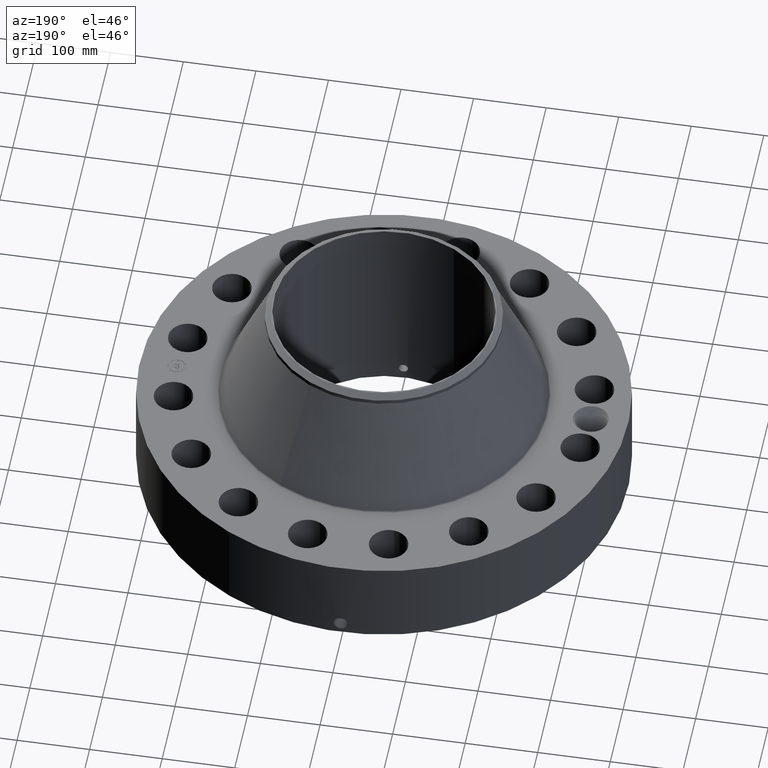
[diagram: clean part render]
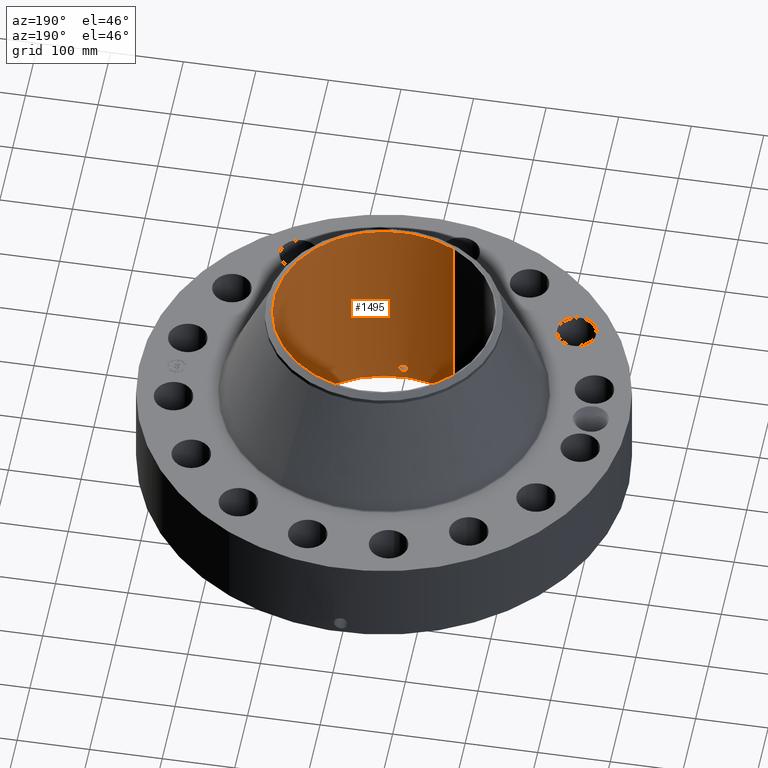
[diagram: same view with one face highlighted and labeled with its STEP entity id]
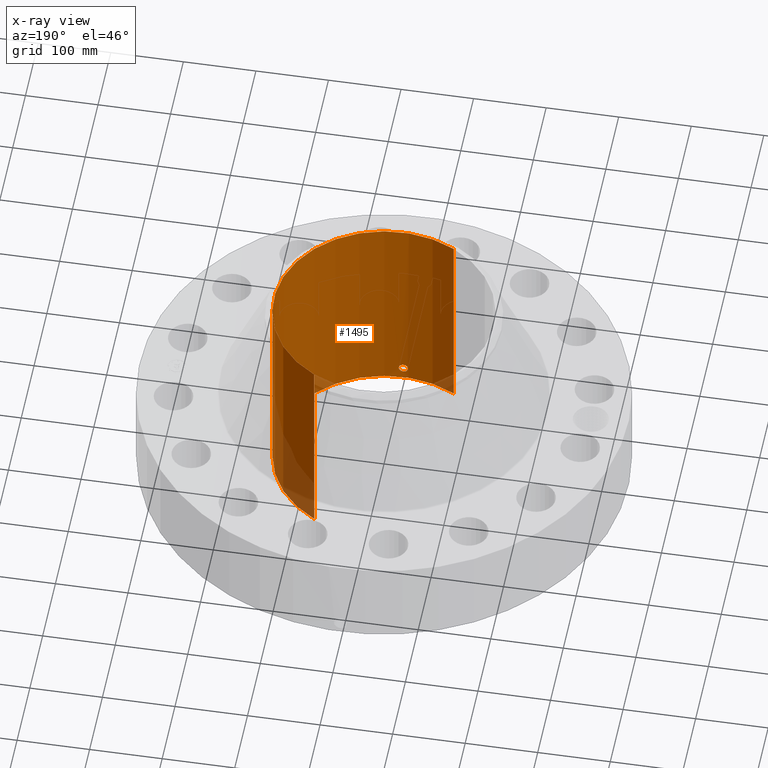
[diagram: x-ray of the same camera — body ghosted, the highlighted face saturated]
A machine part, auxiliary view. The second image highlights one B-rep face of the part: STEP entity #1495.
The next image is the same camera in x-ray: the body ghosted, the highlighted face saturated — about 8% of this face is hidden behind the body in this view.
In plain terms, the highlighted cylindrical surface (partial cylindrical patch) has radius 151.613 mm, axis along (0, 0, -1).
Its self-contained STEP definition (entity closure, byte-faithful):
#262=AXIS2_PLACEMENT_3D('Circle Axis2P3D',#260,#261,$) ;
#1426=AXIS2_PLACEMENT_3D('Cylinder Axis2P3D',#1423,#1424,#1425) ;
#1430=AXIS2_PLACEMENT_3D('Circle Axis2P3D',#1428,#1429,$) ;
#260=CARTESIAN_POINT('Axis2P3D Location',(0.,0.,0.250000000001)) ;
#264=CARTESIAN_POINT('Vertex',(2.86169103994,5.23829031194,0.250000000001)) ;
#266=CARTESIAN_POINT('Vertex',(-2.86169103994,-5.23829031194,0.250000000001)) ;
#1423=CARTESIAN_POINT('Axis2P3D Location',(0.,0.,5.81000000002)) ;
#1428=CARTESIAN_POINT('Axis2P3D Location',(0.,0.,11.37)) ;
#1432=CARTESIAN_POINT('Vertex',(2.86169103994,5.23829031194,11.37)) ;
#1434=CARTESIAN_POINT('Vertex',(-2.86169103994,-5.23829031194,11.37)) ;
#1437=CARTESIAN_POINT('Line Origine',(2.86169103994,5.23829031194,5.81000000002)) ;
#1442=CARTESIAN_POINT('Line Origine',(-2.86169103994,-5.23829031194,5.81000000002)) ;
#1454=CARTESIAN_POINT('Control Point',(0.219395640473,-5.96496660118,0.820143615352)) ;
#1455=CARTESIAN_POINT('Control Point',(0.206921632116,-5.96542540393,0.797310096213)) ;
#1456=CARTESIAN_POINT('Control Point',(0.191477792798,-5.96596078778,0.776100563377)) ;
#1457=CARTESIAN_POINT('Control Point',(0.173344008309,-5.96653140082,0.757028402361)) ;
#1458=CARTESIAN_POINT('Control Point',(0.112128400755,-5.96818197278,0.707545153448)) ;
#1459=CARTESIAN_POINT('Control Point',(0.0349677224378,-5.96925434584,0.684023123762)) ;
#1460=CARTESIAN_POINT('Control Point',(-0.0195753009668,-5.96933432106,0.682387715832)) ;
#1461=CARTESIAN_POINT('Control Point',(-0.124165117875,-5.96815350968,0.707537772894)) ;
#1462=CARTESIAN_POINT('Control Point',(-0.203212659402,-5.96571018499,0.780466647274)) ;
#1463=CARTESIAN_POINT('Control Point',(-0.232184785503,-5.96450768293,0.826691511993)) ;
#1464=CARTESIAN_POINT('Control Point',(-0.255836274106,-5.96351830833,0.904843823839)) ;
#1465=CARTESIAN_POINT('Control Point',(-0.248290285215,-5.96383370337,0.984222432991)) ;
#1466=CARTESIAN_POINT('Control Point',(-0.242056330238,-5.96409807315,1.01079694588)) ;
#1467=CARTESIAN_POINT('Control Point',(-0.232320088085,-5.96449123097,1.03619834199)) ;
#1468=CARTESIAN_POINT('Control Point',(-0.219395640473,-5.96496660118,1.05985638466)) ;
#1469=CARTESIAN_POINT('Vertex',(0.219395640473,-5.96496660118,0.820143615352)) ;
#1471=CARTESIAN_POINT('Vertex',(-0.219395640473,-5.96496660118,1.05985638466)) ;
#1475=CARTESIAN_POINT('Control Point',(-0.219395640473,-5.96496660118,1.05985638466)) ;
#1476=CARTESIAN_POINT('Control Point',(-0.206921632111,-5.96542540393,1.0826899038)) ;
#1477=CARTESIAN_POINT('Control Point',(-0.191477792786,-5.96596078778,1.10389943665)) ;
#1478=CARTESIAN_POINT('Control Point',(-0.173344008325,-5.96653140082,1.12297159763)) ;
#1479=CARTESIAN_POINT('Control Point',(-0.112128400769,-5.96818197278,1.17245484655)) ;
#1480=CARTESIAN_POINT('Control Point',(-0.0349677224468,-5.96925434584,1.19597687624)) ;
#1481=CARTESIAN_POINT('Control Point',(0.0195753009728,-5.96933432106,1.19761228417)) ;
#1482=CARTESIAN_POINT('Control Point',(0.124165117842,-5.96815350968,1.17246222712)) ;
#1483=CARTESIAN_POINT('Control Point',(0.203212659349,-5.96571018499,1.09953335278)) ;
#1484=CARTESIAN_POINT('Control Point',(0.232184785523,-5.96450768292,1.05330848795)) ;
#1485=CARTESIAN_POINT('Control Point',(0.255836274114,-5.96351830833,0.975156176098)) ;
#1486=CARTESIAN_POINT('Control Point',(0.248290285208,-5.96383370337,0.895777566941)) ;
#1487=CARTESIAN_POINT('Control Point',(0.242056330265,-5.96409807315,0.869203054196)) ;
#1488=CARTESIAN_POINT('Control Point',(0.232320088103,-5.96449123097,0.843801658049)) ;
#1489=CARTESIAN_POINT('Control Point',(0.219395640473,-5.96496660118,0.820143615352)) ;
#261=DIRECTION('Axis2P3D Direction',(0.,0.,-0.0393700787402)) ;
#1424=DIRECTION('Axis2P3D Direction',(0.,0.,-0.0393700787402)) ;
#1425=DIRECTION('Axis2P3D XDirection',(-0.0188750212049,-0.0345504945626,0.)) ;
#1429=DIRECTION('Axis2P3D Direction',(0.,0.,-0.0393700787402)) ;
#1438=DIRECTION('Vector Direction',(0.,0.,-0.0393700787402)) ;
#1443=DIRECTION('Vector Direction',(0.,0.,-0.0393700787402)) ;
#1439=VECTOR('Line Direction',#1438,0.0393700787402) ;
#1444=VECTOR('Line Direction',#1443,0.0393700787402) ;
#1448=ORIENTED_EDGE('',*,*,#1436,.F.) ;
#1449=ORIENTED_EDGE('',*,*,#1441,.T.) ;
#1450=ORIENTED_EDGE('',*,*,#268,.T.) ;
#1451=ORIENTED_EDGE('',*,*,#1446,.F.) ;
#1492=ORIENTED_EDGE('',*,*,#1473,.F.) ;
#1493=ORIENTED_EDGE('',*,*,#1490,.F.) ;
#1494=FACE_BOUND('',#1491,.T.) ;
#1495=ADVANCED_FACE('PartBody',(#1452,#1494),#1427,.F.) ;
#1453=B_SPLINE_CURVE_WITH_KNOTS('',5,(#1454,#1455,#1456,#1457,#1458,#1459,#1460,#1461,#1462,#1463,#1464,#1465,#1466,#1467,#1468),.UNSPECIFIED.,.F.,.U.,(6,3,3,3,6),(0.,4.67381044508,14.0224322621,23.3724398262,28.2150226202),.UNSPECIFIED.) ;
#1474=B_SPLINE_CURVE_WITH_KNOTS('',5,(#1475,#1476,#1477,#1478,#1479,#1480,#1481,#1482,#1483,#1484,#1485,#1486,#1487,#1488,#1489),.UNSPECIFIED.,.F.,.U.,(6,3,3,3,6),(0.,4.67381044682,14.0224322631,23.3724398211,28.2150226219),.UNSPECIFIED.) ;
#263=CIRCLE('generated circle',#262,5.96900000002) ;
#1431=CIRCLE('generated circle',#1430,5.96900000002) ;
#1427=CYLINDRICAL_SURFACE('generated cylinder',#1426,5.96900000002) ;
#268=EDGE_CURVE('',#265,#267,#263,.T.) ;
#1436=EDGE_CURVE('',#1433,#1435,#1431,.T.) ;
#1441=EDGE_CURVE('',#1433,#265,#1440,.T.) ;
#1446=EDGE_CURVE('',#1435,#267,#1445,.T.) ;
#1473=EDGE_CURVE('',#1470,#1472,#1453,.T.) ;
#1490=EDGE_CURVE('',#1472,#1470,#1474,.T.) ;
#1447=EDGE_LOOP('',(#1448,#1449,#1450,#1451)) ;
#1491=EDGE_LOOP('',(#1492,#1493)) ;
#1452=FACE_OUTER_BOUND('',#1447,.T.) ;
#1440=LINE('Line',#1437,#1439) ;
#1445=LINE('Line',#1442,#1444) ;
#265=VERTEX_POINT('',#264) ;
#267=VERTEX_POINT('',#266) ;
#1433=VERTEX_POINT('',#1432) ;
#1435=VERTEX_POINT('',#1434) ;
#1470=VERTEX_POINT('',#1469) ;
#1472=VERTEX_POINT('',#1471) ;